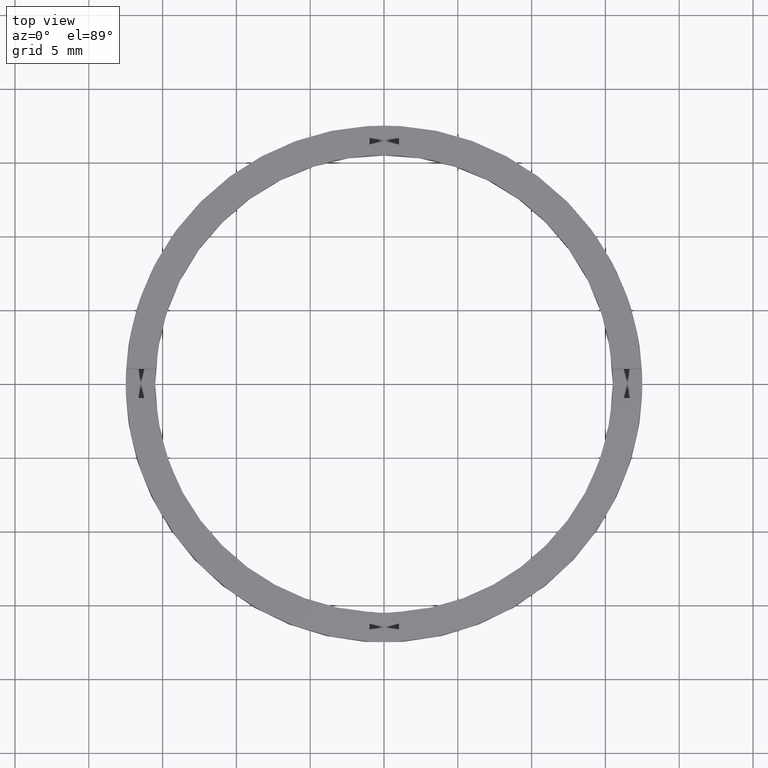
[diagram: clean part render]
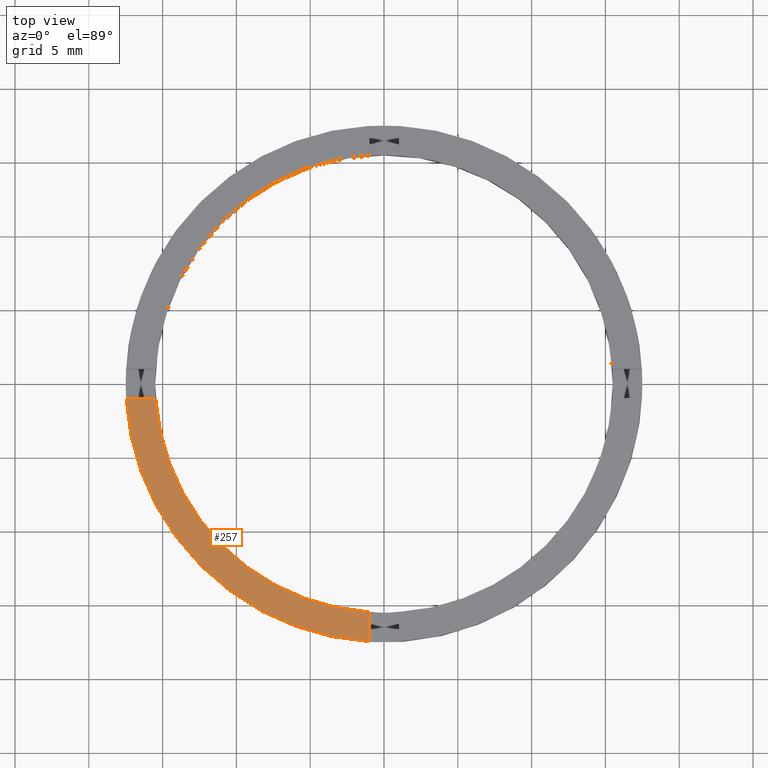
[diagram: same view with one face highlighted and labeled with its STEP entity id]
A machine part, top view. The second image highlights one B-rep face of the part: STEP entity #257.
In plain terms, the highlighted planar face has unit normal (0, 0, 1).
Its self-contained STEP definition (entity closure, byte-faithful):
#19 = EDGE_CURVE ( 'NONE', #500, #435, #722, .T. ) ;
#25 = AXIS2_PLACEMENT_3D ( 'NONE', #579, #611, #335 ) ;
#54 = PLANE ( 'NONE',  #120 ) ;
#57 = DIRECTION ( 'NONE',  ( 0.000000000000000000, 0.000000000000000000, 1.000000000000000000 ) ) ;
#111 = DIRECTION ( 'NONE',  ( 0.000000000000000000, 0.000000000000000000, 1.000000000000000000 ) ) ;
#113 = EDGE_LOOP ( 'NONE', ( #387, #255, #766, #128 ) ) ;
#120 = AXIS2_PLACEMENT_3D ( 'NONE', #177, #57, #733 ) ;
#128 = ORIENTED_EDGE ( 'NONE', *, *, #477, .T. ) ;
#156 = CARTESIAN_POINT ( 'NONE',  ( -7.500000000000190958, -1.000000000000021982, 2.500000000000000000 ) ) ;
#177 = CARTESIAN_POINT ( 'NONE',  ( 0.000000000000000000, 0.000000000000000000, 2.500000000000000000 ) ) ;
#191 = VERTEX_POINT ( 'NONE', #290 ) ;
#255 = ORIENTED_EDGE ( 'NONE', *, *, #595, .F. ) ;
#257 = ADVANCED_FACE ( 'NONE', ( #377 ), #54, .T. ) ;
#265 = DIRECTION ( 'NONE',  ( 1.000000000000000000, 0.000000000000000000, 0.000000000000000000 ) ) ;
#290 = CARTESIAN_POINT ( 'NONE',  ( -17.47140520965615096, -1.000000000000023759, 2.500000000000000000 ) ) ;
#295 = CIRCLE ( 'NONE', #495, 17.50000000000000355 ) ;
#312 = VECTOR ( 'NONE', #588, 1000.000000000000000 ) ;
#313 = LINE ( 'NONE', #156, #312 ) ;
#335 = DIRECTION ( 'NONE',  ( 1.000000000000000000, 0.000000000000000000, 0.000000000000000000 ) ) ;
#344 = CARTESIAN_POINT ( 'NONE',  ( -15.46770829825801741, -1.000000000000023315, 2.500000000000000000 ) ) ;
#377 = FACE_OUTER_BOUND ( 'NONE', #113, .T. ) ;
#387 = ORIENTED_EDGE ( 'NONE', *, *, #19, .F. ) ;
#431 = CARTESIAN_POINT ( 'NONE',  ( -1.000000000000162537, -15.46770829825800675, 2.500000000000000000 ) ) ;
#435 = VERTEX_POINT ( 'NONE', #499 ) ;
#465 = VECTOR ( 'NONE', #758, 1000.000000000000000 ) ;
#477 = EDGE_CURVE ( 'NONE', #191, #435, #295, .T. ) ;
#495 = AXIS2_PLACEMENT_3D ( 'NONE', #596, #111, #265 ) ;
#499 = CARTESIAN_POINT ( 'NONE',  ( -1.000000000000162315, -17.47140520965614030, 2.500000000000000000 ) ) ;
#500 = VERTEX_POINT ( 'NONE', #431 ) ;
#552 = CIRCLE ( 'NONE', #25, 15.50000000000000000 ) ;
#579 = CARTESIAN_POINT ( 'NONE',  ( 0.000000000000000000, 0.000000000000000000, 2.500000000000000000 ) ) ;
#581 = EDGE_CURVE ( 'NONE', #191, #664, #313, .T. ) ;
#588 = DIRECTION ( 'NONE',  ( 1.000000000000000000, 1.734723475976806848E-16, -0.000000000000000000 ) ) ;
#595 = EDGE_CURVE ( 'NONE', #664, #500, #552, .T. ) ;
#596 = CARTESIAN_POINT ( 'NONE',  ( 0.000000000000000000, 0.000000000000000000, 2.500000000000000000 ) ) ;
#611 = DIRECTION ( 'NONE',  ( 0.000000000000000000, 0.000000000000000000, 1.000000000000000000 ) ) ;
#664 = VERTEX_POINT ( 'NONE', #344 ) ;
#722 = LINE ( 'NONE', #762, #465 ) ;
#733 = DIRECTION ( 'NONE',  ( 1.000000000000000000, 0.000000000000000000, -0.000000000000000000 ) ) ;
#758 = DIRECTION ( 'NONE',  ( 1.301042606982605074E-16, -1.000000000000000000, 0.000000000000000000 ) ) ;
#762 = CARTESIAN_POINT ( 'NONE',  ( -1.000000000000163647, -7.500000000000185629, 2.500000000000000000 ) ) ;
#766 = ORIENTED_EDGE ( 'NONE', *, *, #581, .F. ) ;